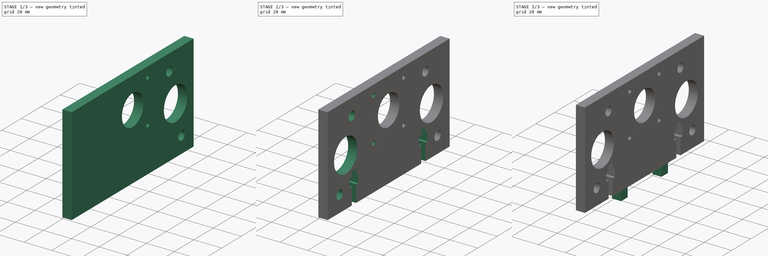
[diagram: build sequence overview — one tinted view per stage of 3, left to right]
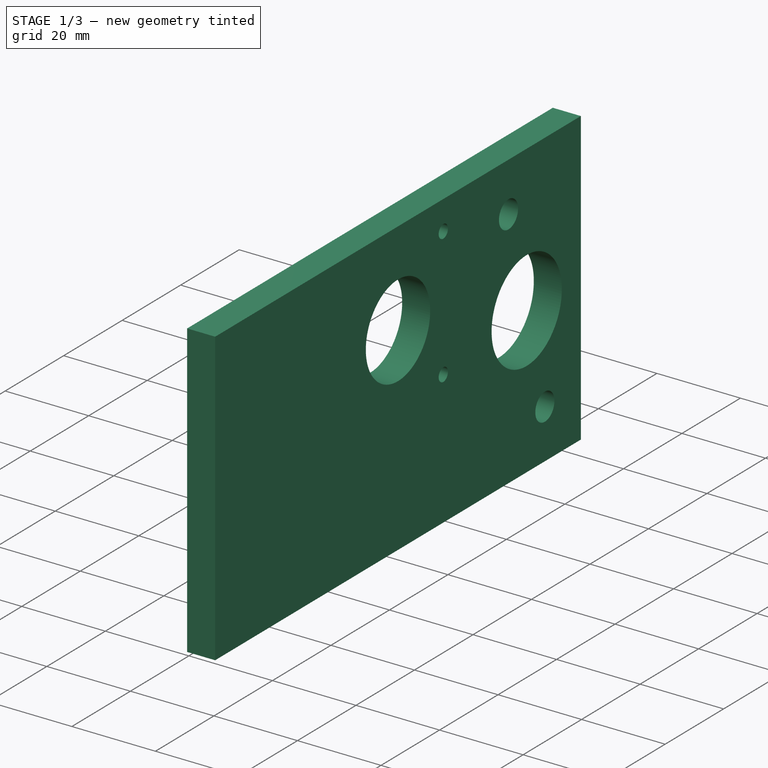
[diagram: stage 1 of 3 — iso view after this stage's code; geometry added in this stage tinted green]
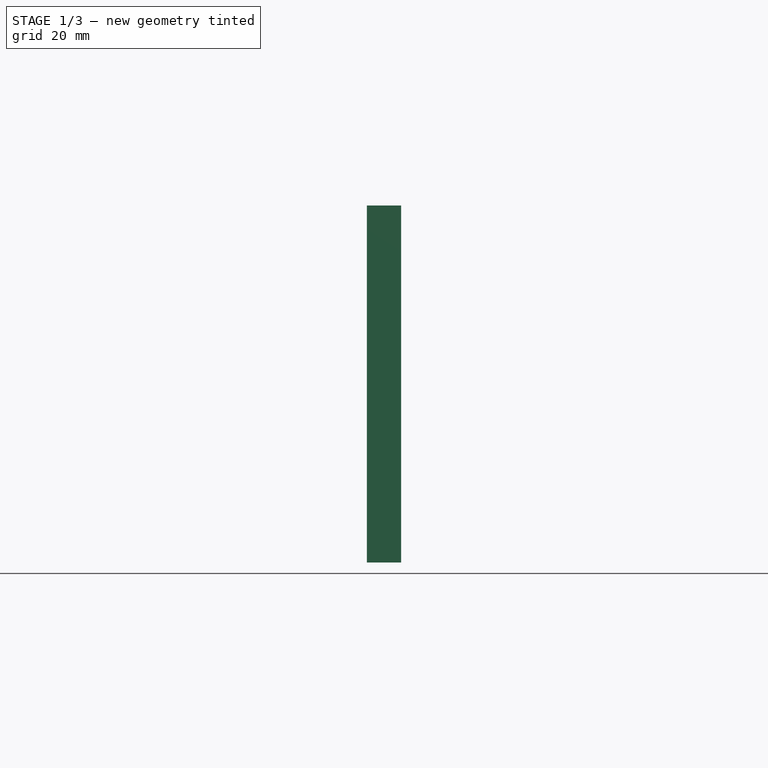
[diagram: stage 1 of 3 — front view after this stage's code; geometry added in this stage tinted green]
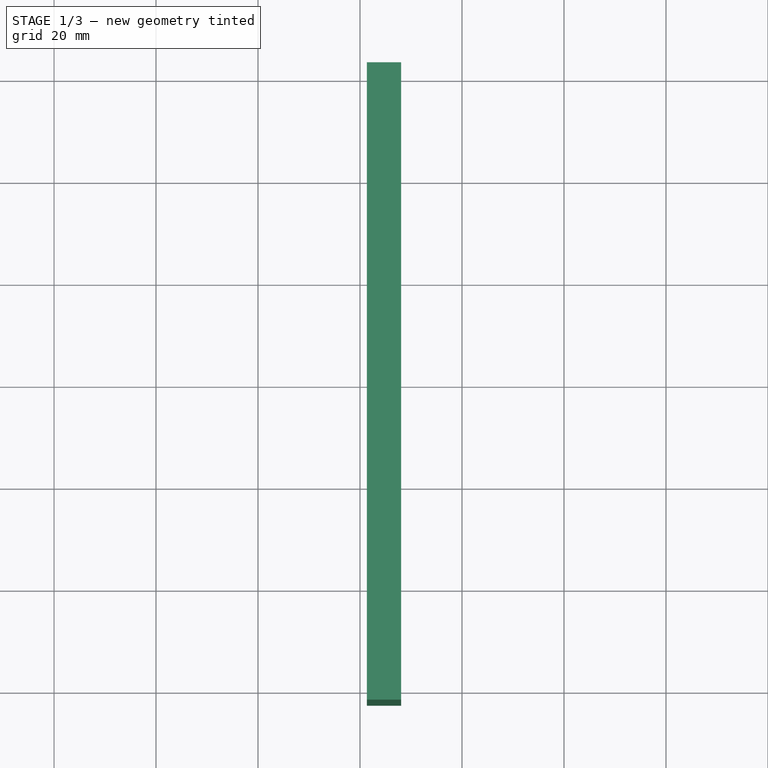
[diagram: stage 1 of 3 — top view after this stage's code; geometry added in this stage tinted green]
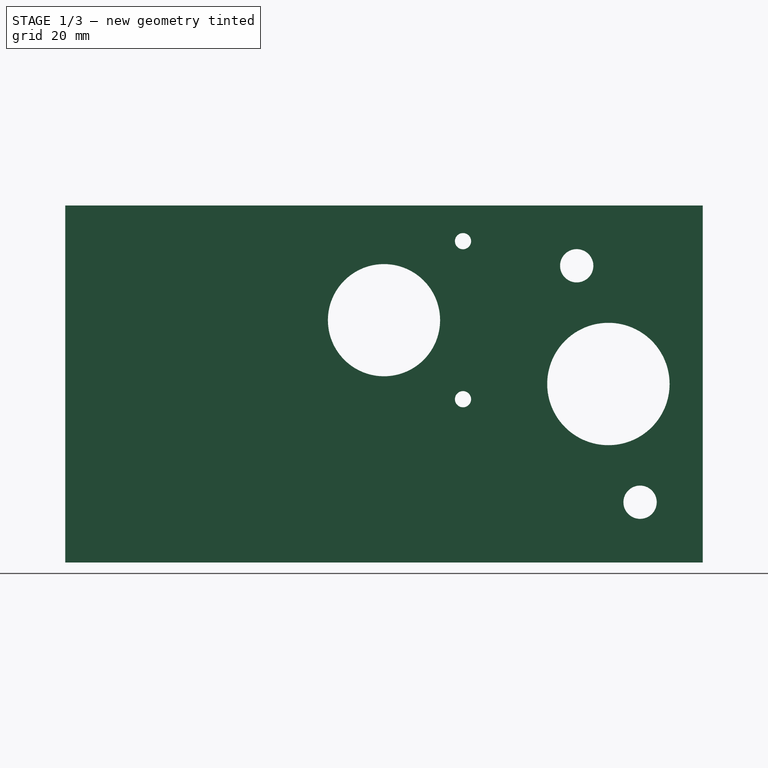
[diagram: stage 1 of 3 — right view after this stage's code; geometry added in this stage tinted green]
FCSTD DOCUMENT
Label: export
License: CC-BY 3.0
LicenseURL: http://creativecommons.org/licenses/by/3.0/
objects: Sketcher::SketchObject×4, PartDesign::Mirrored×3, PartDesign::Pad×2, PartDesign::Pocket×2
note: 15 computed .brp shape members not serialized (recipe doc carries the construction recipe); baked Part::Feature solids carry a one-line shape summary decoded from their .brp

FEATURE [Sketcher::SketchObject] Sketch001  label="Sketchtopplate"
  Placement = pos=(0,0,3.35) rot=(0,0,1;0rad)
  sketch-geometry (4):
    g0: LineSegment StartX=1.35 StartY=62.5 StartZ=0 EndX=8.05 EndY=62.5 EndZ=0
    g1: LineSegment StartX=8.05 StartY=62.5 StartZ=0 EndX=8.05 EndY=-62.5 EndZ=0
    g2: LineSegment StartX=8.05 StartY=-62.5 StartZ=0 EndX=1.35 EndY=-62.5 EndZ=0
    g3: LineSegment StartX=1.35 StartY=-62.5 StartZ=0 EndX=1.35 EndY=62.5 EndZ=0
  constraints (12):
    c: Coincident(g0,g1)
    c: Coincident(g1,g2)
    c: Coincident(g2,g3)
    c: Coincident(g3,g0)
    c: Horizontal(g0)
    c: Horizontal(g2)
    c: Vertical(g1)
    c: Vertical(g3)
    c: Distance(g0) = 6.7
    c: Distance(g3) = 125
    c: DistanceX(g-1,g0) = 1.35
    c: Symmetric(g0,g1,g-1)
FEATURE [PartDesign::Pad] Pad004
  Length = 70
  Length2 = 5
  Placement = pos=(0,0,3.35) rot=(0,0,1;0rad)
  Sketch = -> Sketch001
  Type = 0
FEATURE [Sketcher::SketchObject] Sketch001002002010004010  label="top plate holes"
  Placement = pos=(1.35,0,3.35) rot=(0.57735,-0.57735,-0.57735;2.0944rad)
  Support = -> Pad004 [Face4]
  sketch-geometry (13):
    g0: Circle CenterX=-44 CenterY=35 CenterZ=0 NormalX=0 NormalY=0 NormalZ=1 Radius=12
    g1: Circle CenterX=0 CenterY=47.514 CenterZ=0 NormalX=0 NormalY=0 NormalZ=1 Radius=11
    g2: Circle CenterX=-37.7883 CenterY=58.1822 CenterZ=0 NormalX=0 NormalY=0 NormalZ=1 Radius=3.264
    g3: Circle CenterX=-50.2117 CenterY=11.8178 CenterZ=0 NormalX=0 NormalY=0 NormalZ=1 Radius=3.264
    g4: LineSegment [constr] StartX=15.494 StartY=63.008 StartZ=0 EndX=-15.494 EndY=63.008 EndZ=0
    g5: LineSegment [constr] StartX=-15.494 StartY=63.008 StartZ=0 EndX=-15.494 EndY=32.02 EndZ=0
    g6: LineSegment [constr] StartX=-15.494 StartY=32.02 StartZ=0 EndX=15.494 EndY=32.02 EndZ=0
    g7: LineSegment [constr] StartX=15.494 StartY=32.02 StartZ=0 EndX=15.494 EndY=63.008 EndZ=0
    g8: Circle CenterX=-15.494 CenterY=63.008 CenterZ=0 NormalX=0 NormalY=0 NormalZ=1 Radius=1.5875
    g9: Circle CenterX=-15.494 CenterY=32.02 CenterZ=0 NormalX=0 NormalY=0 NormalZ=1 Radius=1.5875
    g10: LineSegment [constr] StartX=-100.876 StartY=35 StartZ=0 EndX=100.876 EndY=35 EndZ=0
    g11: LineSegment [constr] StartX=-37.7883 StartY=58.1822 StartZ=0 EndX=-44 EndY=35 EndZ=0
    g12: LineSegment [constr] StartX=-44 StartY=35 StartZ=0 EndX=-50.2117 EndY=11.8178 EndZ=0
  constraints (36):
    c: Radius(g0) = 12
    c: DistanceY(g-1,g0) = 35
    c: Radius(g1) = 11
    c: PointOnObject(g1,g-2)
    c: DistanceY(g-1,g1) = 47.514
    c: Coincident(g4,g5)
    c: Coincident(g5,g6)
    c: Coincident(g6,g7)
    c: Coincident(g7,g4)
    c: Horizontal(g4)
    c: Horizontal(g6)
    c: Vertical(g5)
    c: Vertical(g7)
    c: Symmetric(g4,g4,g-2)
    c: Distance(g4) = 30.988
    c: DistanceY(g1,g4) = 15.494
    c: DistanceY(g1,g6) = -15.494
    c: Equal(g9,g8)
    c: Coincident(g8,g4)
    c: Coincident(g9,g5)
    c: Horizontal(g10)
    c: PointOnObject(g0,g10)
    c: DistanceX(g-1,g0) = -44
    c: Distance(g10) = 201.752
    c: Symmetric(g10,g10,g-2)
    c: Radius(g2) = 3.264
    c: Equal(g3,g2)
    c: Radius(g9) = 1.5875
    c: Coincident(g11,g12)
    c: Equal(g12,g11)
    c: Parallel(g11,g12)
    c: Distance(g11) = 24
    c: Coincident(g11,g0)
    c: Coincident(g12,g3)
    c: Coincident(g2,g11)
    c: Angle(g-1,g12) = 1.309
FEATURE [PartDesign::Pocket] Pocket008
  Length = 5
  Placement = pos=(0,0,3.35) rot=(0,0,1;0rad)
  Sketch = -> Sketch001002002010004010
  Type = 1
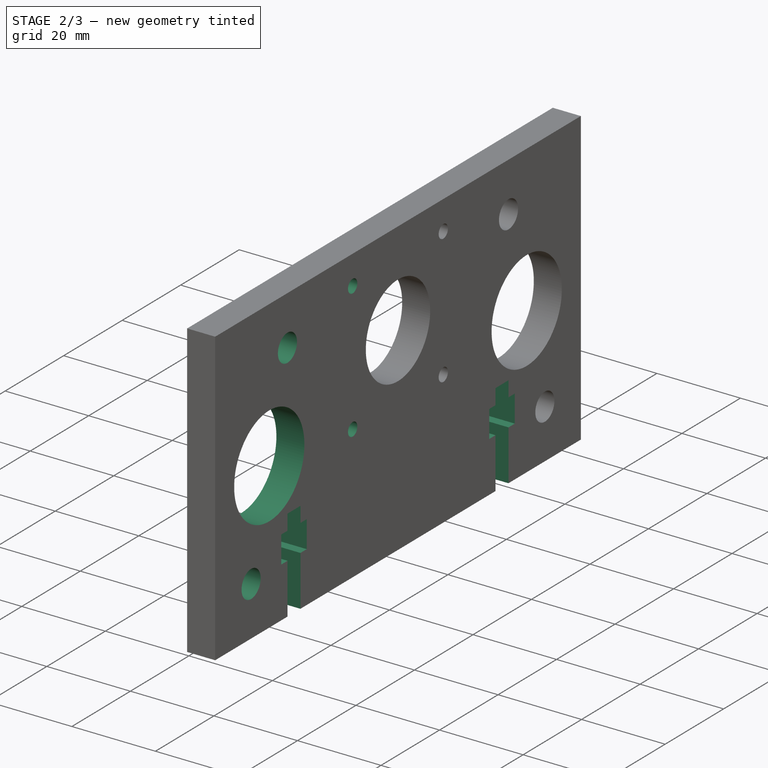
[diagram: stage 2 of 3 — iso view after this stage's code; geometry added in this stage tinted green]
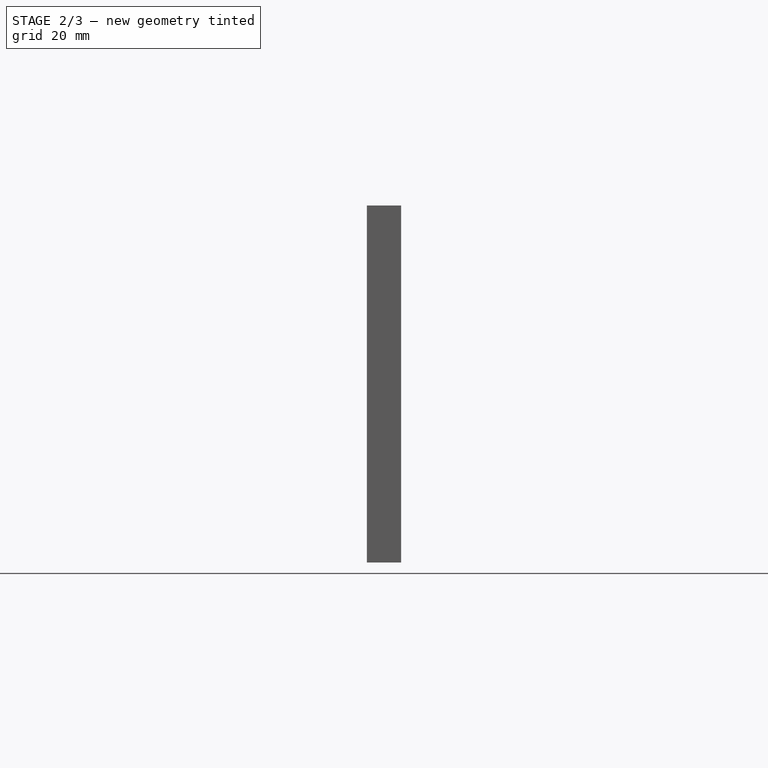
[diagram: stage 2 of 3 — front view after this stage's code; geometry added in this stage tinted green]
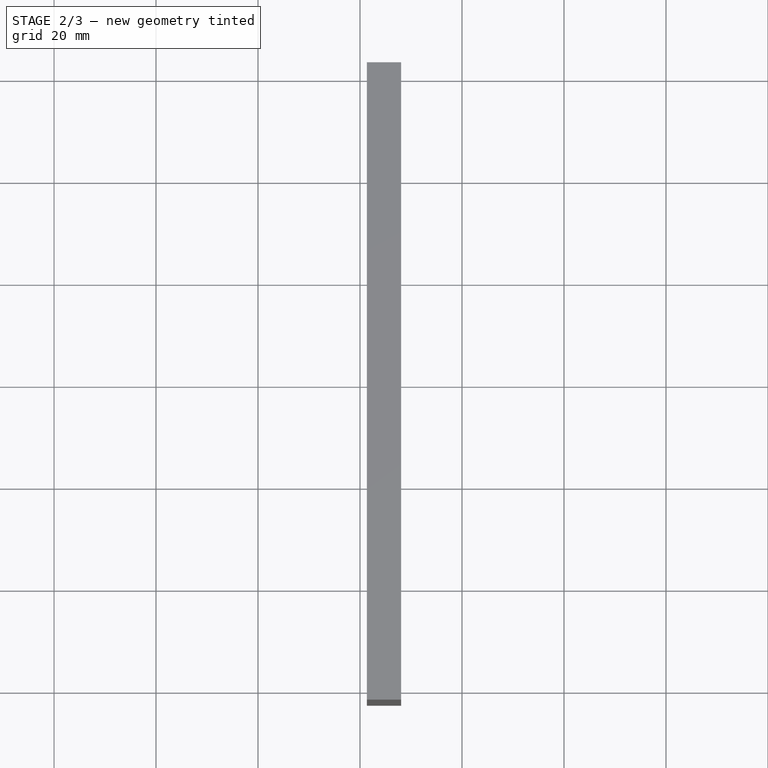
[diagram: stage 2 of 3 — top view after this stage's code; geometry added in this stage tinted green]
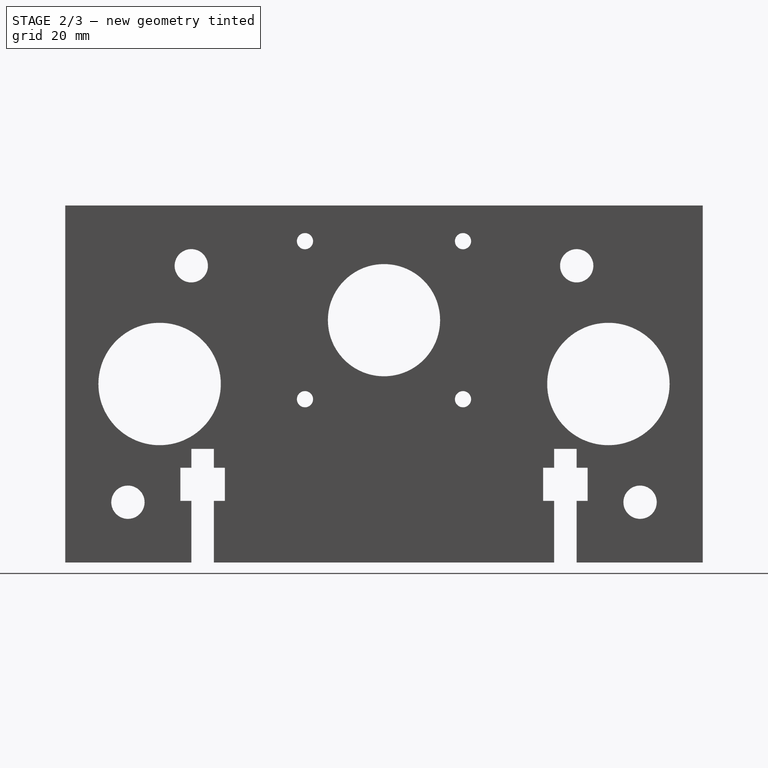
[diagram: stage 2 of 3 — right view after this stage's code; geometry added in this stage tinted green]
FEATURE [PartDesign::Mirrored] Mirrored
  MirrorPlane = -> Sketch001002002010004010 [V_Axis]
  Originals = -> [Pocket008]
  Placement = pos=(0,0,3.35) rot=(0,0,1;0rad)
FEATURE [Sketcher::SketchObject] Sketch001002002010004011001004  label="Nut trap001"
  Placement = pos=(1.35,0,3.35) rot=(0.57735,-0.57735,-0.57735;2.0944rad)
  Support = -> Mirrored [Face2]
  sketch-geometry (14):
    g0: LineSegment StartX=-37.77 StartY=-1.44443e-06 StartZ=0 EndX=-37.77 EndY=12.08 EndZ=0
    g1: LineSegment StartX=-37.77 StartY=12.08 StartZ=0 EndX=-39.925 EndY=12.08 EndZ=0
    g2: LineSegment StartX=-39.925 StartY=12.08 StartZ=0 EndX=-39.925 EndY=18.58 EndZ=0
    g3: LineSegment StartX=-39.925 StartY=18.58 StartZ=0 EndX=-37.77 EndY=18.58 EndZ=0
    g4: LineSegment StartX=-37.77 StartY=18.58 StartZ=0 EndX=-37.77 EndY=22.28 EndZ=0
    g5: LineSegment StartX=-37.77 StartY=22.28 StartZ=0 EndX=-33.35 EndY=22.28 EndZ=0
    g6: LineSegment StartX=-33.35 StartY=22.28 StartZ=0 EndX=-33.35 EndY=18.58 EndZ=0
    g7: LineSegment StartX=-33.35 StartY=18.58 StartZ=0 EndX=-31.195 EndY=18.58 EndZ=0
    g8: LineSegment StartX=-31.195 StartY=18.58 StartZ=0 EndX=-31.195 EndY=12.08 EndZ=0
    g9: LineSegment StartX=-31.195 StartY=12.08 StartZ=0 EndX=-33.35 EndY=12.08 EndZ=0
    g10: LineSegment StartX=-33.35 StartY=12.08 StartZ=0 EndX=-33.35 EndY=0 EndZ=0
    g11: LineSegment StartX=-37.77 StartY=-1.44443e-06 StartZ=0 EndX=-35.56 EndY=-7.22217e-07 EndZ=0
    g12: LineSegment StartX=-35.56 StartY=-7.22217e-07 StartZ=0 EndX=-33.35 EndY=0 EndZ=0
    g13: LineSegment [constr] StartX=-35.56 StartY=-7.22217e-07 StartZ=0 EndX=-35.56 EndY=22.28 EndZ=0
  constraints (40):
    c: Coincident(g0,g1)
    c: Coincident(g1,g2)
    c: Coincident(g2,g3)
    c: Coincident(g3,g4)
    c: Coincident(g4,g5)
    c: Coincident(g5,g6)
    c: Coincident(g6,g7)
    c: Coincident(g7,g8)
    c: Coincident(g8,g9)
    c: Coincident(g9,g10)
    c: Distance(g5) = 4.42
    c: Distance(g2) = 6.5
    c: Distance(g0) = 12.08
    c: PointOnObject(g0,g4)
    c: Perpendicular(g1,g0)
    c: Perpendicular(g2,g1)
    c: Perpendicular(g3,g2)
    c: Perpendicular(g3,g4)
    c: Perpendicular(g5,g4)
    c: Perpendicular(g6,g5)
    c: Perpendicular(g7,g6)
    c: Perpendicular(g7,g8)
    c: Perpendicular(g8,g9)
    c: Distance(g4) = 3.7
    c: Equal(g11,g12)
    c: Coincident(g11,g0)
    c: Coincident(g12,g10)
    c: Perpendicular(g12,g10)
    c: Perpendicular(g0,g11)
    c: Coincident(g11,g12)
    c: Parallel(g10,g0)
    c: Coincident(g13,g11)
    c: PointOnObject(g13,g5)
    c: Parallel(g13,g0)
    c: Symmetric(g8,g1,g13)
    c: Symmetric(g6,g3,g13)
    c: Distance(g3) = 2.155
    c: Angle(g10,g-1) = 1.5708
    c: DistanceX(g-1,g11) = -35.56
    c: PointOnObject(g10,g-1)
FEATURE [PartDesign::Pocket] Pocket009
  Length = 5
  Placement = pos=(0,0,3.35) rot=(0,0,1;0rad)
  Sketch = -> Sketch001002002010004011001004
  Type = 1
FEATURE [PartDesign::Mirrored] Mirrored001
  MirrorPlane = -> Sketch001002002010004011001004 [V_Axis]
  Originals = -> [Pocket009]
  Placement = pos=(0,0,3.35) rot=(0,0,1;0rad)
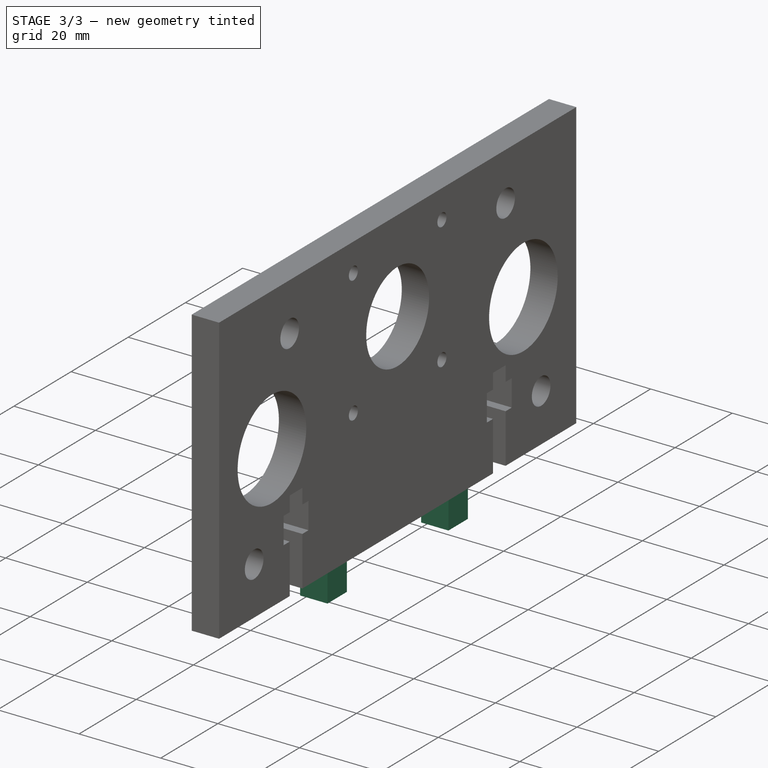
[diagram: stage 3 of 3 — iso view after this stage's code; geometry added in this stage tinted green]
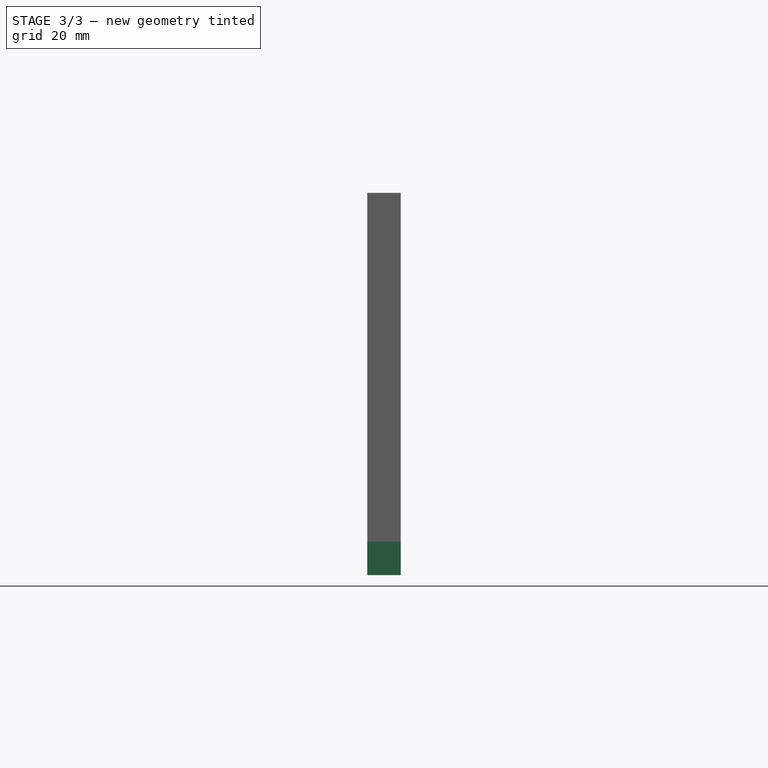
[diagram: stage 3 of 3 — front view after this stage's code; geometry added in this stage tinted green]
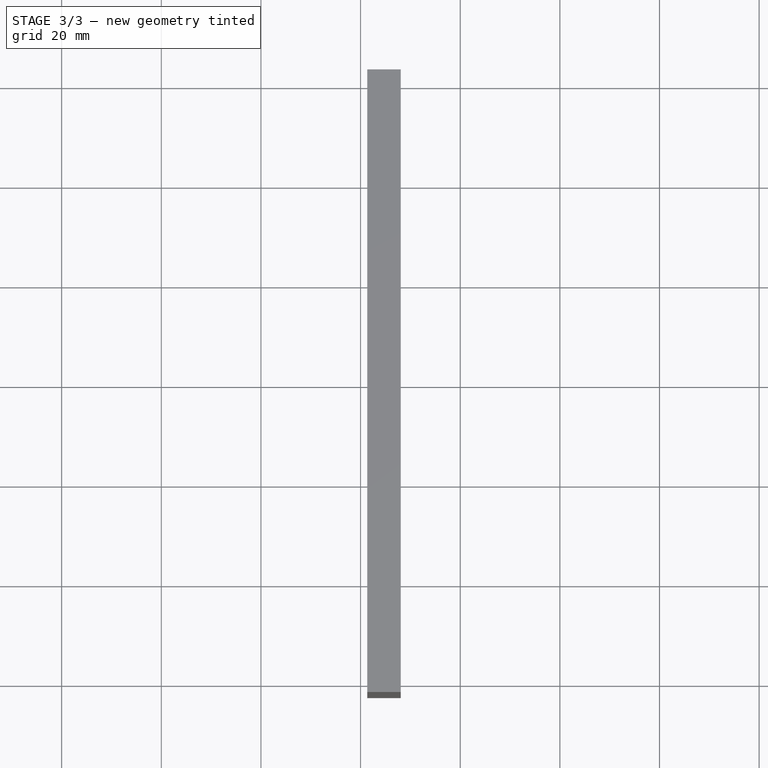
[diagram: stage 3 of 3 — top view after this stage's code; geometry added in this stage tinted green]
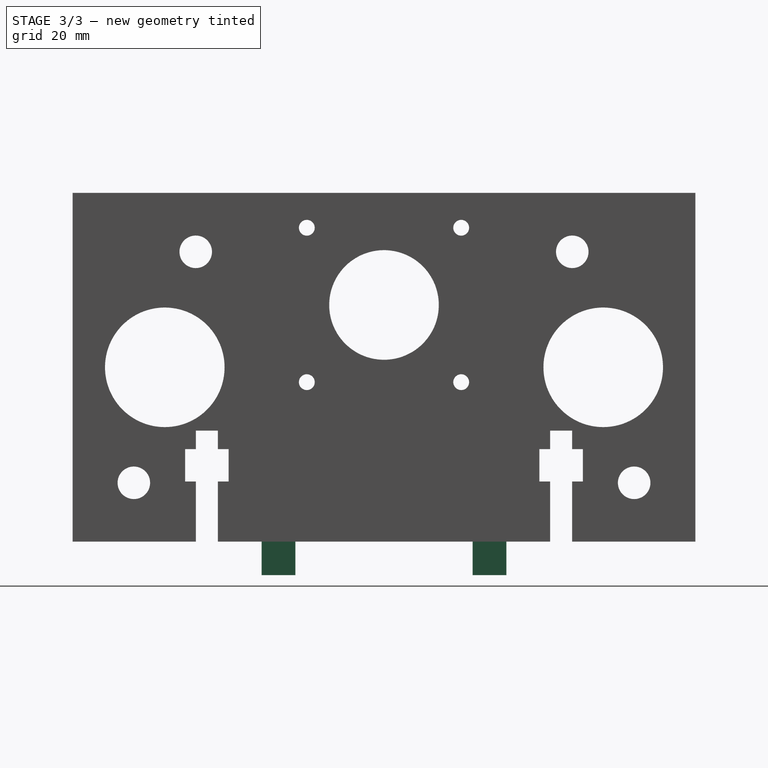
[diagram: stage 3 of 3 — right view after this stage's code; geometry added in this stage tinted green]
FEATURE [Sketcher::SketchObject] Sketch001002002010004011001005
  ExternalGeometry = -> [Mirrored001]
  Placement = pos=(0,0,3.35) rot=(1,0,0;3.14159rad)
  Support = -> Mirrored001 [Face25]
  sketch-geometry (4):
    g0: LineSegment StartX=1.35 StartY=24.5618 StartZ=0 EndX=8.05 EndY=24.5618 EndZ=0
    g1: LineSegment StartX=8.05 StartY=24.5618 StartZ=0 EndX=8.05 EndY=17.78 EndZ=0
    g2: LineSegment StartX=8.05 StartY=17.78 StartZ=0 EndX=1.35 EndY=17.78 EndZ=0
    g3: LineSegment StartX=1.35 StartY=17.78 StartZ=0 EndX=1.35 EndY=24.5618 EndZ=0
  constraints (12):
    c: Coincident(g0,g1)
    c: Coincident(g1,g2)
    c: Coincident(g2,g3)
    c: Coincident(g3,g0)
    c: Horizontal(g0)
    c: Horizontal(g2)
    c: Vertical(g1)
    c: Vertical(g3)
    c: PointOnObject(g0,g-3)
    c: PointOnObject(g0,g-4)
    c: Distance(g3) = 6.7818
    c: DistanceY(g-1,g2) = 17.78
FEATURE [PartDesign::Pad] Pad005
  Length = 6.7
  Length2 = 100
  Placement = pos=(0,0,3.35) rot=(0,0,1;0rad)
  Sketch = -> Sketch001002002010004011001005
  Type = 0
FEATURE [PartDesign::Mirrored] Mirrored002
  MirrorPlane = -> Sketch001002002010004011001005 [H_Axis]
  Originals = -> [Pad005]
  Placement = pos=(0,0,3.35) rot=(0,0,1;0rad)
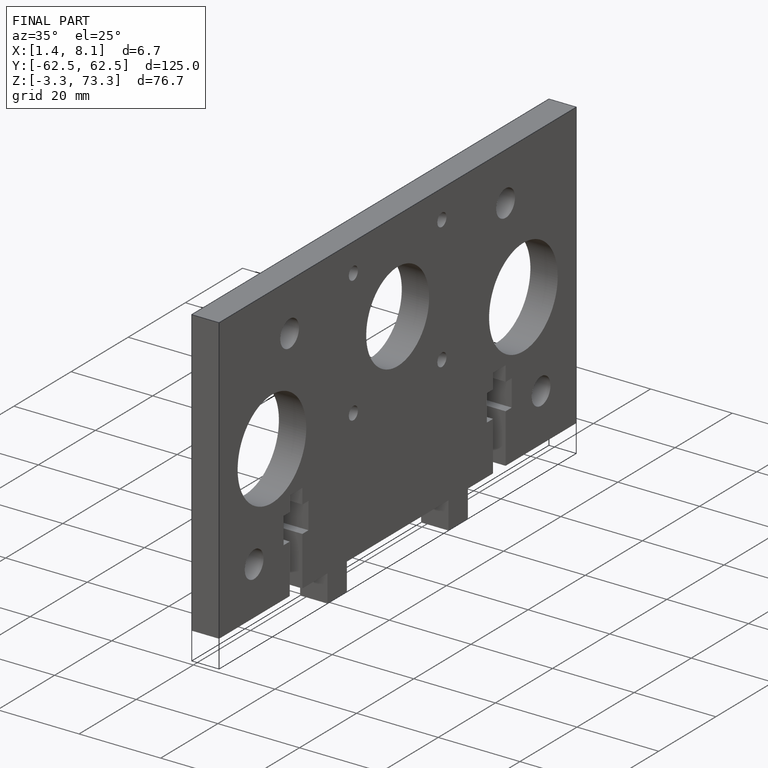
[diagram: finished part — iso view with bounding-box wireframe]
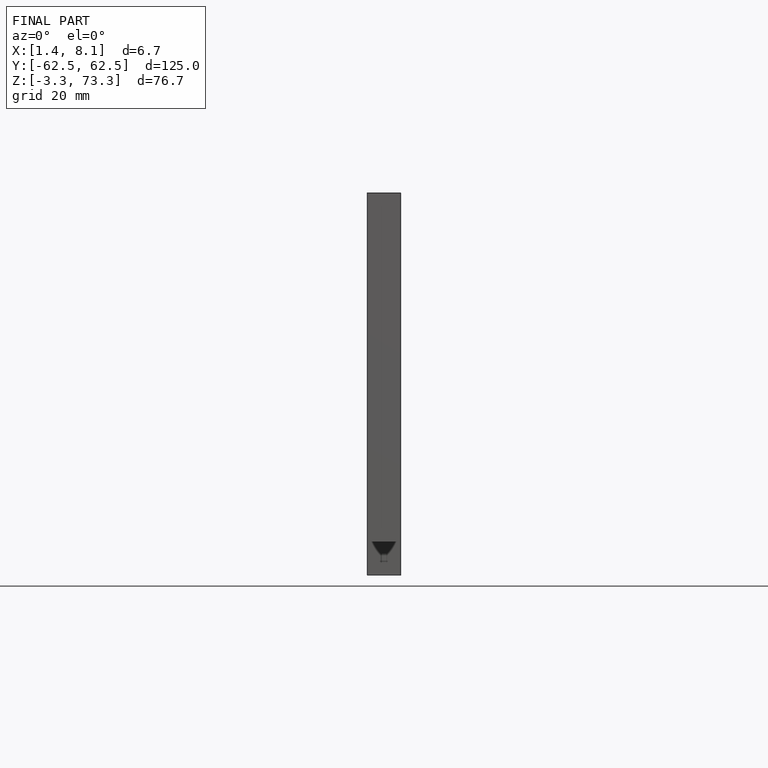
[diagram: finished part — front view with bounding-box wireframe]
